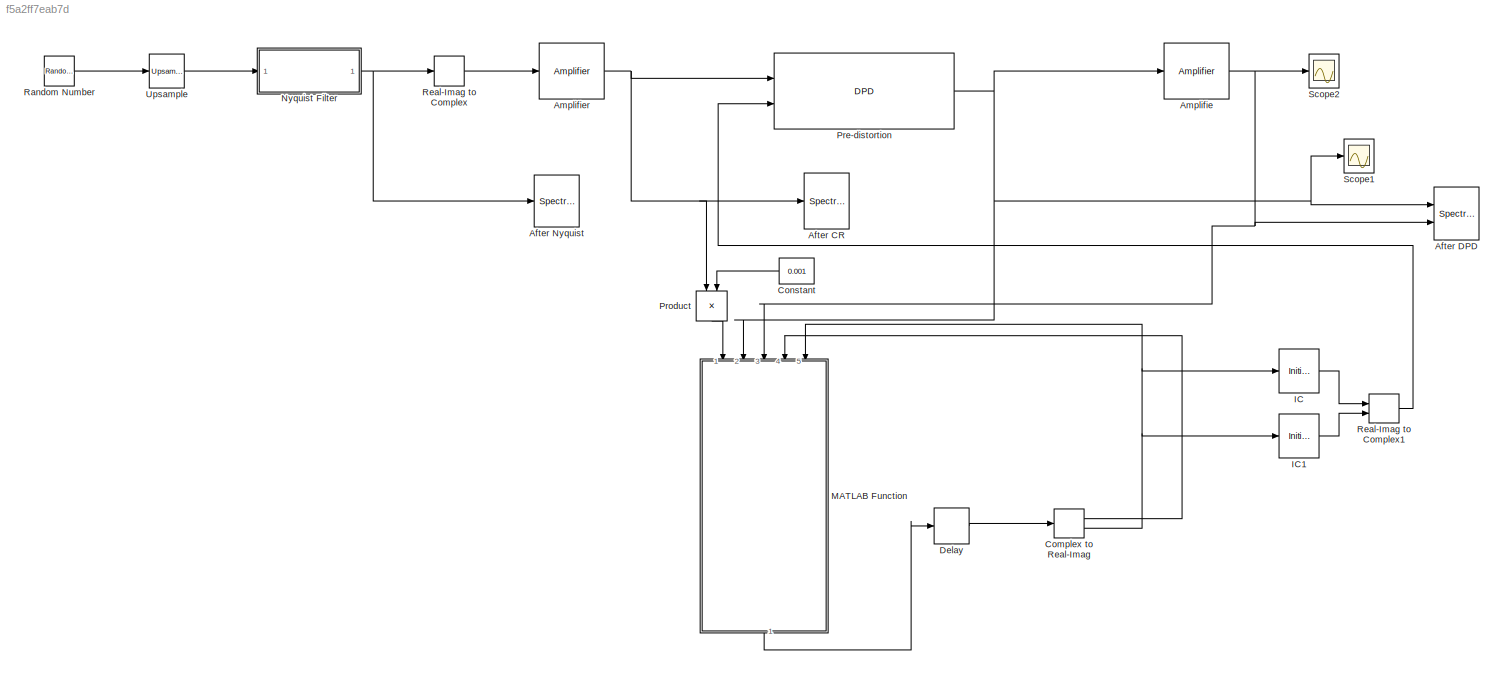
MODEL slx_f5a2ff7eab7d
KIND model
CONFIG AbsTol = auto
CONFIG EnableMultiTasking = off
CONFIG FixedStep = auto
CONFIG MaxStep = auto
CONFIG MinStep = auto
CONFIG RelTol = 1e-3
CONFIG SampleTimeConstraint = Unconstrained
CONFIG Solver = VariableStepAuto
CONFIG SolverName = VariableStepAuto
CONFIG StartTime = 0.0
CONFIG StopTime = inf
BLOCK [SpectrumAnalyzer] After CR
  Ports = [1]
  ScopeSpecificationString = spbscopes.SpectrumAnalyzerBlockCfg('CurrentConfiguration', extmgr.ConfigurationSet(extmgr.Configuration('Core','General UI',true),extmgr.Configuration('Core','Source UI',true),extmgr.Configuration('Sources','WiredSimulink',true),extmgr.Configuration('Visuals','Spectrum',true,'AxesProperties',struct('Color',{[0 0 0],[0 0 0]},'XColor',{[0.686274509803922 0.686274509803922 0.686274509803922],[0.68627...<+2054ch>
BLOCK [SpectrumAnalyzer] After DPD
  NumInputPorts = 2
  Ports = [2]
  ScopeSpecificationString = spbscopes.SpectrumAnalyzerBlockCfg('CurrentConfiguration', extmgr.ConfigurationSet(extmgr.Configuration('Core','General UI',true),extmgr.Configuration('Core','Source UI',true),extmgr.Configuration('Sources','WiredSimulink',true),extmgr.Configuration('Visuals','Spectrum',true,'AxesProperties',struct('Color',{[0 0 0],[0 0 0]},'XColor',{[0.686274509803922 0.686274509803922 0.686274509803922],[0.68627...<+2118ch>
BLOCK [SpectrumAnalyzer] After Nyquist
  Ports = [1]
  ScopeSpecificationString = spbscopes.SpectrumAnalyzerBlockCfg('CurrentConfiguration', extmgr.ConfigurationSet(extmgr.Configuration('Core','General UI',true),extmgr.Configuration('Core','Source UI',true),extmgr.Configuration('Sources','WiredSimulink',true),extmgr.Configuration('Visuals','Spectrum',true,'AxesProperties',struct('Color',{[0 0 0],[0 0 0]},'XColor',{[0.686274509803922 0.686274509803922 0.686274509803922],[0.68627...<+1863ch>
BLOCK [Reference] Amplifie  REF=rfmathmodels1/Amplifier
  Ports = [1, 1]
  SourceBlock = rfmathmodels1/Amplifier
  SourceProductBaseCode = RB
  SourceProductName = RF Blockset
  SourceType = Amplifier
BLOCK [Reference] Amplifier  REF=rfmathmodels1/Amplifier
  Ports = [1, 1]
  SourceBlock = rfmathmodels1/Amplifier
  SourceProductBaseCode = RB
  SourceProductName = RF Blockset
  SourceType = Amplifier
BLOCK [ComplexToRealImag] Complex to Real-Imag
  Ports = [1, 2]
BLOCK [Constant] Constant
  Value = 0.001
BLOCK [Delay] Delay
  DelayLength = 1
  InitialCondition = 0
  InputPortMap = u0
  Ports = [1, 1]
  UseCircularBuffer = on
BLOCK [InitialCondition] IC
BLOCK [InitialCondition] IC1
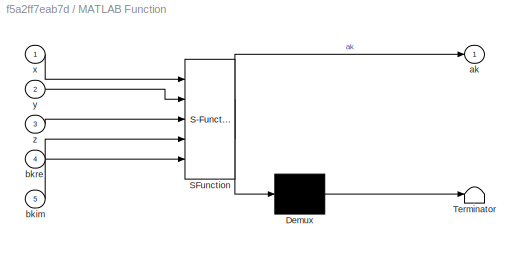
BLOCK [SubSystem] MATLAB Function
  ErrorFcn = Stateflow.Translate.translate
  PermitHierarchicalResolution = ExplicitOnly
  Ports = [5, 1]
  RequestExecContextInheritance = off
  SFBlockType = MATLAB Function
  TreatAsAtomicUnit = on
BLOCK [Demux] MATLAB Function/ Demux 
  Outputs = 1
  Ports = [1, 1]
BLOCK [S-Function] MATLAB Function/ SFunction 
  EnableBusSupport = on
  FunctionName = sf_sfun
  PortCounts = [5 2]
  Ports = [5, 2]
  SFcnIsStateOwnerBlock = off
  SFunctionDeploymentMode = off
  Tag = Stateflow S-Function 2
BLOCK [Terminator] MATLAB Function/ Terminator 
BLOCK [Outport] MATLAB Function/ak
  IconDisplay = Port number
BLOCK [Inport] MATLAB Function/bkim
  IconDisplay = Port number
  Port = 5
BLOCK [Inport] MATLAB Function/bkre
  IconDisplay = Port number
  Port = 4
BLOCK [Inport] MATLAB Function/x
  IconDisplay = Port number
BLOCK [Inport] MATLAB Function/y
  IconDisplay = Port number
  Port = 2
BLOCK [Inport] MATLAB Function/z
  IconDisplay = Port number
  Port = 3
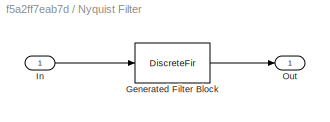
BLOCK [SubSystem] Nyquist Filter
  CopyFcn = fdesignblkfcn(gcbh, {'CopyFcn'});
  DialogController = fdesignblkfcn
  InitFcn = fdesignblkfcn(gcbh, {'InitFcn'});
  Ports = [1, 1]
  RequestExecContextInheritance = off
  UserDataPersistent = on
BLOCK [DiscreteFir] Nyquist Filter/Generated Filter Block
  Coefficients = [-1.51622726129955863e-05 0 4.17065642797130267e-05 0 -8.63974532359493069e-05 0 0.000156112339412392586 0 -0.000259152163405612895 0 0.000405340967727107018 0 -0.000606122081126900724 0 0.000874664613518894908 0 -0.00122600321576426152 0 0.00167724728876562468 0 -0.00224791534173759749 0 0.00296048017608780203 0 -0.00384125870473808143 0 0.00492186111131599595 0 -0.00624155643186620392 0 0.007851...<+921ch>
  InputPortMap = u0
  OutputPortMap = o0
  Ports = [1, 1]
  Tag = BlockMethodSubSystem
BLOCK [Inport] Nyquist Filter/In
  IconDisplay = Port number
BLOCK [Outport] Nyquist Filter/Out
  IconDisplay = Port number
  VectorParamsAs1DForOutWhenUnconnected = off
BLOCK [Reference] Pre-distortion  REF=commrfcorlib/DPD
  Ports = [2, 1]
  SourceBlock = commrfcorlib/DPD
  SourceProductBaseCode = CM
  SourceProductName = Communications Toolbox
  SourceType = DPD
BLOCK [Product] Product
  InputSameDT = off
  OutDataTypeStr = Inherit: Inherit via internal rule
  Ports = [2, 1]
  RndMeth = Floor
  SaturateOnIntegerOverflow = off
BLOCK [RandomNumber] Random Number
  SampleTime = 0.001
BLOCK [RealImagToComplex] Real-Imag to Complex
  Input = Real
  Ports = [1, 1]
BLOCK [RealImagToComplex] Real-Imag to Complex1
  Ports = [2, 1]
BLOCK [Scope] Scope1
  Floating = off
  NumInputPorts = 1
  Ports = [1]
  ScopeSpecificationString = Simulink.scopes.TimeScopeBlockCfg('CurrentConfiguration', extmgr.ConfigurationSet(extmgr.Configuration('Core','General UI',true),extmgr.Configuration('Core','Source UI',true),extmgr.Configuration('Sources','WiredSimulink',true,'DataLoggingVariableName','ScopeData1'),extmgr.Configuration('Visuals','Time Domain',true,'SerializedDisplays',{struct('MinYLimReal','-0.00002','MaxYLimReal','0.000003','YLa...<+1392ch>
BLOCK [Scope] Scope2
  Floating = off
  NumInputPorts = 1
  Ports = [1]
  ScopeSpecificationString = Simulink.scopes.TimeScopeBlockCfg('CurrentConfiguration', extmgr.ConfigurationSet(extmgr.Configuration('Core','General UI',true),extmgr.Configuration('Core','Source UI',true),extmgr.Configuration('Sources','WiredSimulink',true),extmgr.Configuration('Visuals','Time Domain',true,'SerializedDisplays',{struct('MinYLimReal','-0.00002','MaxYLimReal','0.000003','YLabelReal','','MinYLimMag','0.000000','Ma...<+1353ch>
BLOCK [Reference] Upsample  REF=dspsigops/Upsample
  Ports = [1, 1]
  SourceBlock = dspsigops/Upsample
  SourceProductBaseCode = DS
  SourceProductName = DSP System Toolbox
  SourceType = Upsample
  UserDataPersistent = on
NET Amplifie:1 -> After DPD:2, MATLAB Function:3, Scope2:1
NET Amplifier:1 -> After CR:1, Pre-distortion:1, Product:1
LINE Complex to Real-Imag:1 -> MATLAB Function:4
NET Complex to Real-Imag:2 -> IC1:1, IC:1, MATLAB Function:5
LINE Constant:1 -> Product:2
LINE Delay:1 -> Complex to Real-Imag:1
LINE IC1:1 -> Real-Imag to Complex1:2
LINE IC:1 -> Real-Imag to Complex1:1
LINE MATLAB Function:1 -> Delay:1
NET Nyquist Filter:1 -> After Nyquist:1, Real-Imag to Complex:1
NET Pre-distortion:1 -> After DPD:1, Amplifie:1, MATLAB Function:2, Scope1:1
LINE Product:1 -> MATLAB Function:1
LINE Random Number:1 -> Upsample:1
LINE Real-Imag to Complex1:1 -> Pre-distortion:2
LINE Real-Imag to Complex:1 -> Amplifier:1
LINE Upsample:1 -> Nyquist Filter:1
note: NET lines group one-source signal fan-out (src -> all destinations, sorted); 1:1 wires keep LINE
CHART MATLAB Function states=1 transitions=1
  STATE_LABEL 'eML_blk_kernel()'
  STATE_LABEL 'SCRIPT:\nfunction ak = fcn(x,y,z, bkre, bkim)\n\ngamma = 1e-3;\n\nx_phase = x / abs(x);\ny_phase = y / abs(y);\nz_phase = z / abs(z);\n\nphase = z_phase * x_phase / y_phase;\n\nbk = bkre + bkim;\n\nak = bk - gamma*(z-x)*phase;\nend\n% ak = bk + gamma*(z-x)*z*x/y;\n\n'
